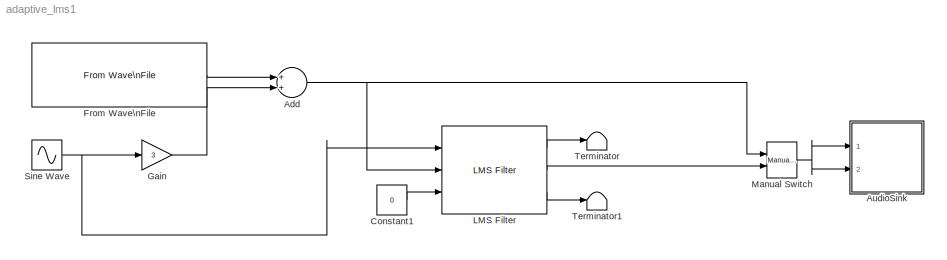
MODEL adaptive_lms1
KIND model
CONFIG StartFcn = tic
CONFIG StopFcn = toc
BLOCK [Sum] Add
  CollapseMode = All dimensions
  InputSameDT = off
  OutDataTypeMode = Inherit via internal rule
  OutScaling = 2^-10
  Ports = [2, 1]
  SaturateOnIntegerOverflow = off
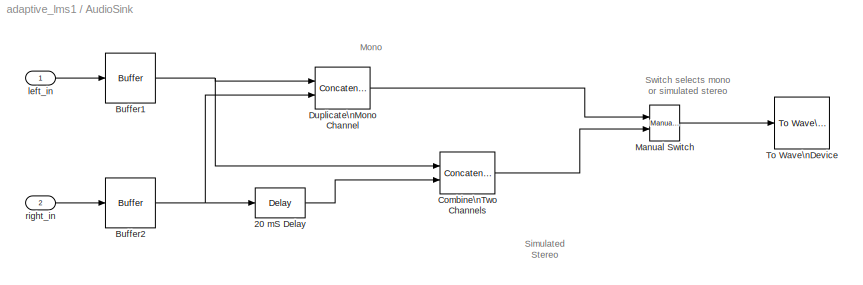
BLOCK [SubSystem] AudioSink
  FunctionWithSeparateData = off
  MaskHideContents = off
  MinAlgLoopOccurrences = off
  Ports = [2]
  RTWSystemCode = Auto
BLOCK [Reference] AudioSink/20 mS Delay  REF=dspsigops/Delay
  Ports = [1, 1]
  SourceBlock = dspsigops/Delay
  SourceType = Delay
  delay = 20e-3 * 48000
  dif_ic_for_ch = off
  dif_ic_for_dly = off
  dly_unit = Samples
  ic = 0
  ic_detail = on
  reset_popup = None
BLOCK [Reference] AudioSink/Buffer1  REF=dspbuff3/Buffer
  N = 1
  Ports = [1, 1]
  SourceBlock = dspbuff3/Buffer
  SourceType = Buffer
  V = 0
  ic = 0
BLOCK [Reference] AudioSink/Buffer2  REF=dspbuff3/Buffer
  N = 1
  Ports = [1, 1]
  SourceBlock = dspbuff3/Buffer
  SourceType = Buffer
  V = 0
  ic = 0
BLOCK [Concatenate] AudioSink/Combine\nTwo Channels
  ConcatenateDimension = 2
  Mode = Multidimensional array
  Ports = [2, 1]
BLOCK [Concatenate] AudioSink/Duplicate\nMono Channel
  ConcatenateDimension = 2
  Mode = Multidimensional array
  Ports = [2, 1]
BLOCK [Reference] AudioSink/Manual Switch  REF=simulink/Signal\nRouting/Manual Switch
  FunctionWithSeparateData = off
  Ports = [2, 1]
  RTWMemSecDataConstants = Inherit from model
  RTWMemSecDataInternal = Inherit from model
  RTWMemSecDataParameters = Inherit from model
  RTWMemSecFuncExecute = Inherit from model
  RTWMemSecFuncInitTerm = Inherit from model
  ShowPortLabels = FromPortIcon
  SourceBlock = simulink/Signal\nRouting/Manual Switch
  SourceType = Manual Switch
  SystemSampleTime = -1
  action = 0
  sw = 1
  varsize = off
BLOCK [Reference] AudioSink/To Wave\nDevice  REF=dspwin32/To Wave\nDevice
  Ports = [1]
  SourceBlock = dspwin32/To Wave\nDevice
  SourceType = To Wave Device
  bufDuration = 0.1
  determineBufSize = on
  enable24Bit = off
  initDelay = 0.1
  useDefaultDevice = on
  userDeviceID = SigmaTel Audio
  userIntBufSize = 256
BLOCK [Inport] AudioSink/left_in
  IconDisplay = Port number
BLOCK [Inport] AudioSink/right_in
  IconDisplay = Port number
  Port = 2
BLOCK [Constant] Constant1
  Value = 0
BLOCK [Reference] From Wave\nFile  REF=dspwin32/From Wave\nFile
  FileName = Yabu_sample_48_mono
  MinBufSize = 1
  Ports = [0, 1]
  SamplesPerFrame = 1
  SourceBlock = dspwin32/From Wave\nFile
  SourceType = From Wave File
  bLoop = off
  dType = double
  firstSampleOutput = off
  lastSampleOutput = off
  restartMode = immediately after last sample
  timesToPlay = 1
BLOCK [Gain] Gain
  Gain = 3
  OutDataTypeMode = Inherit via internal rule
  ParameterDataTypeMode = Inherit via internal rule
  SaturateOnIntegerOverflow = off
BLOCK [Reference] LMS Filter  REF=dspadpt3/LMS Filter
  Adapt = off
  Algo = LMS
  DialogController = dspDDGCreate
  DialogControllerArgs = DataTag0
  L = 4
  LockScale = off
  Ports = [3, 3]
  ShowPortLabels = off
  SourceBlock = dspadpt3/LMS Filter
  SourceType = LMS Filter
  accum2FracLength = 20
  accum2Mode = User-defined
  accumFracLength = 20
  accumMode = Same as first input
  accumWordLength = 32
  addnparflag = off
  firstCoeffFracLength = 15
  firstCoeffMode = Same word length as first input
  firstCoeffWordLength = 16
  ic = 0
  leakage = 1.0
  memoryFracLength = 15
  memoryMode = Same as first input
  memoryWordLength = 16
  mu = 0.001
  overflowMode = off
  prodOutput2FracLength = 20
  prodOutput2Mode = User-defined
  prodOutput3FracLength = 20
  prodOutput3Mode = User-defined
  prodOutput4FracLength = 20
  prodOutput4Mode = User-defined
  prodOutputFracLength = 20
  prodOutputMode = Same as first input
  prodOutputWordLength = 32
  quotientFracLength = 20
  quotientMode = User-defined
  resetflag = Non-zero sample
  roundingMode = Floor
  secondCoeffFracLength = 15
  secondCoeffMode = User-defined
  secondCoeffWordLength = 2
  stepflag = Dialog
  weights = on
BLOCK [Reference] Manual Switch  REF=simulink/Signal\nRouting/Manual Switch
  FunctionWithSeparateData = off
  Ports = [2, 1]
  RTWMemSecDataConstants = Inherit from model
  RTWMemSecDataInternal = Inherit from model
  RTWMemSecDataParameters = Inherit from model
  RTWMemSecFuncExecute = Inherit from model
  RTWMemSecFuncInitTerm = Inherit from model
  ShowPortLabels = FromPortIcon
  SourceBlock = simulink/Signal\nRouting/Manual Switch
  SourceType = Manual Switch
  SystemSampleTime = -1
  action = 0
  sw = 0
  varsize = off
BLOCK [Sin] Sine Wave
  Amplitude = 0.5
  Frequency = 2*pi*1200
  Ports = [0, 1]
  SampleTime = 1/48000
  SineType = Time based
  VectorParams1D = off
BLOCK [Terminator] Terminator
BLOCK [Terminator] Terminator1
ANNOTATION AudioSink: Mono
ANNOTATION AudioSink: Simulated\nStereo
ANNOTATION AudioSink: Switch selects mono\nor simulated stereo
NET Add:1 -> LMS Filter:2, Manual Switch:1
LINE AudioSink/20 mS Delay:1 -> AudioSink/Combine\nTwo Channels:2
NET AudioSink/Buffer1:1 -> AudioSink/Combine\nTwo Channels:1, AudioSink/Duplicate\nMono Channel:1
NET AudioSink/Buffer2:1 -> AudioSink/20 mS Delay:1, AudioSink/Duplicate\nMono Channel:2
LINE AudioSink/Combine\nTwo Channels:1 -> AudioSink/Manual Switch:2
LINE AudioSink/Duplicate\nMono Channel:1 -> AudioSink/Manual Switch:1
LINE AudioSink/Manual Switch:1 -> AudioSink/To Wave\nDevice:1
LINE AudioSink/left_in:1 -> AudioSink/Buffer1:1
LINE AudioSink/right_in:1 -> AudioSink/Buffer2:1
LINE Constant1:1 -> LMS Filter:3
LINE From Wave\nFile:1 -> Add:1
LINE Gain:1 -> Add:2
LINE LMS Filter:1 -> Terminator:1
LINE LMS Filter:2 -> Manual Switch:2
LINE LMS Filter:3 -> Terminator1:1
NET Manual Switch:1 -> AudioSink:1, AudioSink:2
NET Sine Wave:1 -> Gain:1, LMS Filter:1
note: NET lines group one-source signal fan-out (src -> all destinations, sorted); 1:1 wires keep LINE
